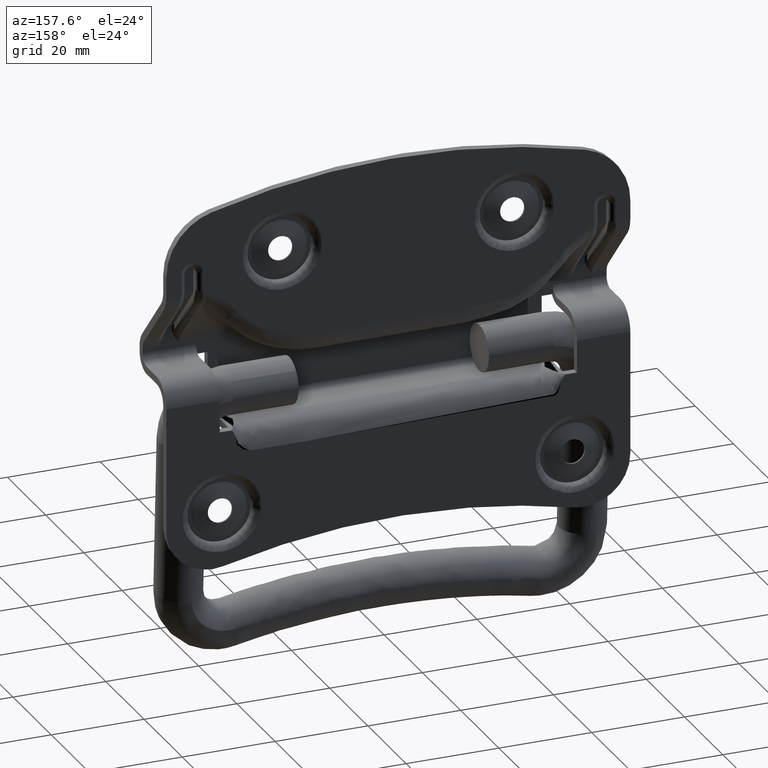
[diagram: clean part render]
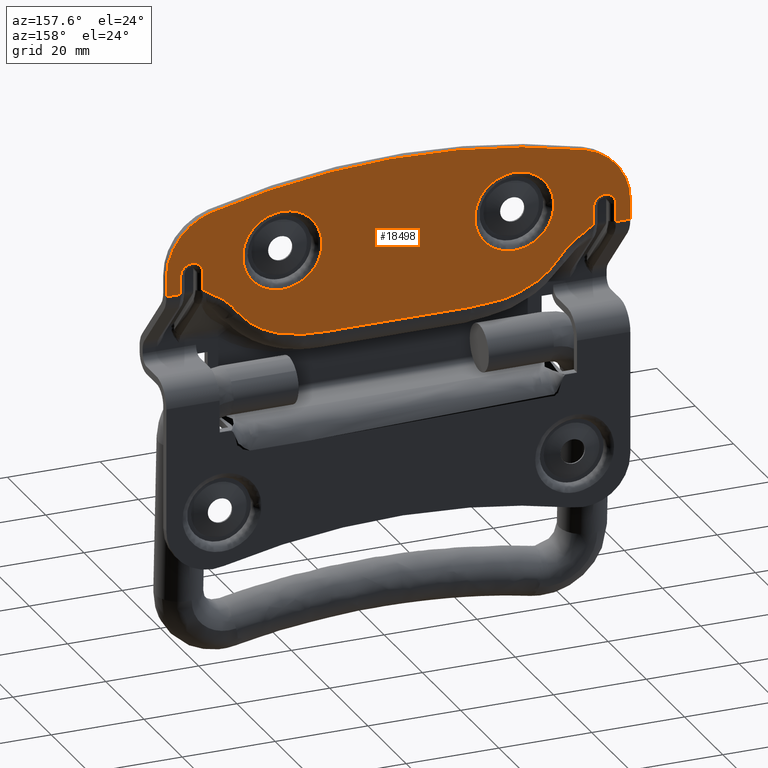
[diagram: same view with one face highlighted and labeled with its STEP entity id]
A machine part, auxiliary view. The second image highlights one B-rep face of the part: STEP entity #18498.
In plain terms, the highlighted face is a freeform B-spline surface patch.
Its self-contained STEP definition (entity closure, byte-faithful):
#5974=CARTESIAN_POINT('',(-16.500672680119081,7.399999999998487,31.893188670373149));
#5975=VERTEX_POINT('',#5974);
#5988=CARTESIAN_POINT('',(-25.0,7.400000000000000,23.500000000000000));
#5989=VERTEX_POINT('',#5988);
#5990=CARTESIAN_POINT('',(-25.0,7.400000000000000,23.500000000000000));
#5991=CARTESIAN_POINT('',(-24.310135702808719,7.399999999999949,23.499809046751999));
#5992=CARTESIAN_POINT('',(-23.206497081053609,7.399999999999805,23.635173560821389));
#5993=CARTESIAN_POINT('',(-21.628879310699531,7.399999999999667,24.151842408902610));
#5994=CARTESIAN_POINT('',(-20.373146734156151,7.399999999999412,24.816734471459291));
#5995=CARTESIAN_POINT('',(-19.200987894605490,7.399999999999280,25.733035229866619));
#5996=CARTESIAN_POINT('',(-18.100174546104871,7.399999999999008,26.931165041810061));
#5997=CARTESIAN_POINT('',(-17.248383608730471,7.399999999999034,28.365136457944299));
#5998=CARTESIAN_POINT('',(-16.655525180623830,7.399999999998537,30.101471210829249));
#5999=CARTESIAN_POINT('',(-16.508768653629328,7.399999999998614,31.237884226158549));
#6000=CARTESIAN_POINT('',(-16.500672680119081,7.399999999998487,31.893188670373149));
#6001=B_SPLINE_CURVE_WITH_KNOTS('',3,(#5990,#5991,#5992,#5993,#5994,#5995,#5996,#5997,#5998,#5999,#6000),.UNSPECIFIED.,.F.,.U.,(4,1,1,1,1,1,1,1,4),(0.000000083468009,2.069537319856718,3.311259529240124,4.966907680426768,6.312127356468104,7.760755789369517,9.830299019251306,11.278994785833520,13.245035416360830),.UNSPECIFIED.);
#6002=EDGE_CURVE('',#5989,#5975,#6001,.T.);
#6004=CARTESIAN_POINT('',(-33.479306674704418,7.399999999998487,32.592732543812893));
#6005=VERTEX_POINT('',#6004);
#6006=CARTESIAN_POINT('',(-33.479306674704418,7.399999999998487,32.592732543812893));
#6007=CARTESIAN_POINT('',(-33.532722009640807,7.399999999998548,31.831980122270480));
#6008=CARTESIAN_POINT('',(-33.442201015629337,7.399999999998682,30.442413115438288));
#6009=CARTESIAN_POINT('',(-32.910023815985468,7.399999999998877,28.771637167857040));
#6010=CARTESIAN_POINT('',(-32.168721482281917,7.399999999999067,27.352414921620309));
#6011=CARTESIAN_POINT('',(-31.190447272957439,7.399999999999232,26.077044178932130));
#6012=CARTESIAN_POINT('',(-29.735752126474630,7.399999999999498,24.855382495261189));
#6013=CARTESIAN_POINT('',(-28.142096247913958,7.399999999999698,24.037407750871399));
#6014=CARTESIAN_POINT('',(-26.525214797145761,7.399999999999856,23.591496982495119));
#6015=CARTESIAN_POINT('',(-25.508411227370839,7.399999999999966,23.499954100537149));
#6016=CARTESIAN_POINT('',(-25.0,7.400000000000000,23.500000000000000));
#6017=B_SPLINE_CURVE_WITH_KNOTS('',3,(#6006,#6007,#6008,#6009,#6010,#6011,#6012,#6013,#6014,#6015,#6016),.UNSPECIFIED.,.F.,.U.,(4,1,1,1,1,1,1,1,4),(0.000000084517712,2.287850290418227,4.139947505196139,5.229426619336120,7.081462687124312,8.933545533380695,10.894597667517679,12.419839382961531,13.945077302466990),.UNSPECIFIED.);
#6018=EDGE_CURVE('',#6005,#5989,#6017,.T.);
#6074=CARTESIAN_POINT('',(-25.0,7.400000000000000,40.500000000000000));
#6075=VERTEX_POINT('',#6074);
#6076=CARTESIAN_POINT('',(-25.0,7.400000000000000,40.500000000000000));
#6077=CARTESIAN_POINT('',(-25.564833556657788,7.399999999999955,40.500071327425758));
#6078=CARTESIAN_POINT('',(-26.694474476412140,7.399999999999821,40.387003352710657));
#6079=CARTESIAN_POINT('',(-28.258029830914591,7.399999999999642,39.905039099523442));
#6080=CARTESIAN_POINT('',(-29.496234400696309,7.399999999999460,39.249828802164082));
#6081=CARTESIAN_POINT('',(-30.542593308276508,7.399999999999301,38.481717149191027));
#6082=CARTESIAN_POINT('',(-31.400871861793981,7.399999999999153,37.642855590544308));
#6083=CARTESIAN_POINT('',(-32.161191611061192,7.399999999998956,36.630975941636692));
#6084=CARTESIAN_POINT('',(-32.707758493346972,7.399999999998780,35.639130866804727));
#6085=CARTESIAN_POINT('',(-33.231571216753572,7.399999999998736,34.307270358891657));
#6086=CARTESIAN_POINT('',(-33.430847651975760,7.399999999998515,33.288799122676977));
#6087=CARTESIAN_POINT('',(-33.479306674704418,7.399999999998487,32.592732543812893));
#6088=B_SPLINE_CURVE_WITH_KNOTS('',3,(#6076,#6077,#6078,#6079,#6080,#6081,#6082,#6083,#6084,#6085,#6086,#6087),.UNSPECIFIED.,.F.,.U.,(4,1,1,1,1,1,1,1,1,4),(0.000000085115511,1.694497439221005,3.389013546118877,4.884167774829431,5.880932025936645,7.276389461687430,8.472509753738898,9.668647711957069,10.665430535541580,12.758626826836201),.UNSPECIFIED.);
#6089=EDGE_CURVE('',#6075,#6005,#6088,.T.);
#6091=CARTESIAN_POINT('',(-16.500672680119081,7.399999999998487,31.893188670373149));
#6092=CARTESIAN_POINT('',(-16.492627194423179,7.399999999998562,32.524010465547583));
#6093=CARTESIAN_POINT('',(-16.614515274191930,7.399999999998651,33.752290426335328));
#6094=CARTESIAN_POINT('',(-17.106194099312180,7.399999999998806,35.260051537690572));
#6095=CARTESIAN_POINT('',(-17.806505558648709,7.399999999999101,36.597846363746463));
#6096=CARTESIAN_POINT('',(-18.651249604197911,7.399999999999055,37.725286033578122));
#6097=CARTESIAN_POINT('',(-19.766144013702839,7.399999999999488,38.747726724136022));
#6098=CARTESIAN_POINT('',(-21.034784058739149,7.399999999999491,39.570252254002881));
#6099=CARTESIAN_POINT('',(-22.757088906712401,7.399999999999855,40.290122143760762));
#6100=CARTESIAN_POINT('',(-24.158798401300992,7.399999999999903,40.500385570447982));
#6101=CARTESIAN_POINT('',(-25.0,7.400000000000000,40.500000000000000));
#6102=B_SPLINE_CURVE_WITH_KNOTS('',3,(#6091,#6092,#6093,#6094,#6095,#6096,#6097,#6098,#6099,#6100,#6101),.UNSPECIFIED.,.F.,.U.,(4,1,1,1,1,1,1,1,4),(0.000000090075794,1.892605826295526,3.680109179350946,4.731582846543484,6.413939332130744,7.885930162124980,9.252821661053837,10.935180004335900,13.458667749444420),.UNSPECIFIED.);
#6103=EDGE_CURVE('',#5975,#6075,#6102,.T.);
#6436=CARTESIAN_POINT('',(28.424654702686279,7.399999999999999,24.220450035639779));
#6437=VERTEX_POINT('',#6436);
#6450=CARTESIAN_POINT('',(24.999949999999998,7.400000000000000,23.500000000000000));
#6451=VERTEX_POINT('',#6450);
#6452=CARTESIAN_POINT('',(24.999949999999998,7.400000000000000,23.500000000000000));
#6453=CARTESIAN_POINT('',(25.477275922084822,7.399999999999997,23.499977707607680));
#6454=CARTESIAN_POINT('',(26.652235915918190,7.400000000000010,23.599193398048399));
#6455=CARTESIAN_POINT('',(27.786212651280220,7.400000000000002,23.939193050441830));
#6456=CARTESIAN_POINT('',(28.424654702686279,7.399999999999999,24.220450035639779));
#6457=B_SPLINE_CURVE_WITH_KNOTS('',3,(#6452,#6453,#6454,#6455,#6456),.UNSPECIFIED.,.F.,.U.,(4,1,4),(6.209891E-009,1.431994427426866,3.524891620544222),.UNSPECIFIED.);
#6458=EDGE_CURVE('',#6451,#6437,#6457,.T.);
#6460=CARTESIAN_POINT('',(16.499950000000119,7.400000000000000,31.999998566106530));
#6461=VERTEX_POINT('',#6460);
#6462=CARTESIAN_POINT('',(16.499950000000119,7.400000000000000,31.999998566106530));
#6463=CARTESIAN_POINT('',(16.499769352913550,7.400000000000015,31.304579976446242));
#6464=CARTESIAN_POINT('',(16.641590530651271,7.399999999999976,30.157255860912208));
#6465=CARTESIAN_POINT('',(17.198809800978829,7.400000000000001,28.504589845311671));
#6466=CARTESIAN_POINT('',(17.965805358249028,7.400000000000008,27.131059878994598));
#6467=CARTESIAN_POINT('',(19.143287718375600,7.400000000000002,25.748845895116730));
#6468=CARTESIAN_POINT('',(20.509384577151579,7.400000000000015,24.709425306722789));
#6469=CARTESIAN_POINT('',(21.897613235610510,7.399999999999954,24.053041927755530));
#6470=CARTESIAN_POINT('',(23.331049828078928,7.400000000000043,23.618187117752591));
#6471=CARTESIAN_POINT('',(24.339304003209989,7.399999999999979,23.499843763140721));
#6472=CARTESIAN_POINT('',(24.999949999999998,7.400000000000000,23.500000000000000));
#6473=B_SPLINE_CURVE_WITH_KNOTS('',3,(#6462,#6463,#6464,#6465,#6466,#6467,#6468,#6469,#6470,#6471,#6472),.UNSPECIFIED.,.F.,.U.,(4,1,1,1,1,1,1,1,4),(0.000000086972364,2.086216169869100,3.442275759339728,5.215593952150782,6.780212189449361,8.866454911805869,10.326827459856410,11.369956029964200,13.351851746269601),.UNSPECIFIED.);
#6474=EDGE_CURVE('',#6461,#6451,#6473,.T.);
#6476=CARTESIAN_POINT('',(24.999949999999998,7.400000000000000,40.500000000000000));
#6477=VERTEX_POINT('',#6476);
#6478=CARTESIAN_POINT('',(24.999949999999998,7.400000000000000,40.500000000000000));
#6479=CARTESIAN_POINT('',(24.304527301342581,7.400000000000000,40.500185977935303));
#6480=CARTESIAN_POINT('',(23.226751388264081,7.399999999999992,40.366941726110269));
#6481=CARTESIAN_POINT('',(21.635180267678010,7.399999999999990,39.851980305121323));
#6482=CARTESIAN_POINT('',(20.428836528382490,7.400000000000022,39.216669424153842));
#6483=CARTESIAN_POINT('',(19.103741961800090,7.399999999999967,38.195651906659393));
#6484=CARTESIAN_POINT('',(18.129138406543309,7.400000000000025,37.093445208408589));
#6485=CARTESIAN_POINT('',(17.242490776574609,7.399999999999996,35.593347854025730));
#6486=CARTESIAN_POINT('',(16.654720337140130,7.400000000000007,33.981864150821558));
#6487=CARTESIAN_POINT('',(16.499818670569191,7.399999999999999,32.660634795330452));
#6488=CARTESIAN_POINT('',(16.499950000000119,7.400000000000000,31.999998566106530));
#6489=B_SPLINE_CURVE_WITH_KNOTS('',3,(#6478,#6479,#6480,#6481,#6482,#6483,#6484,#6485,#6486,#6487,#6488),.UNSPECIFIED.,.F.,.U.,(4,1,1,1,1,1,1,1,4),(0.000000086480442,2.086216422127080,3.233652065280550,5.006959799025703,6.154391394567762,8.240574891652621,9.388016486622533,11.369957406490130,13.351853362611910),.UNSPECIFIED.);
#6490=EDGE_CURVE('',#6477,#6461,#6489,.T.);
#6492=CARTESIAN_POINT('',(32.779499964360220,7.400000000000000,35.424704702686277));
#6493=VERTEX_POINT('',#6492);
#6494=CARTESIAN_POINT('',(32.779499964360220,7.400000000000000,35.424704702686277));
#6495=CARTESIAN_POINT('',(32.583630116704832,7.400000000000004,35.869731151182769));
#6496=CARTESIAN_POINT('',(32.115208537783019,7.399999999999973,36.726014761874637));
#6497=CARTESIAN_POINT('',(31.059853969586989,7.400000000000112,38.052698354170758));
#6498=CARTESIAN_POINT('',(29.643156597195230,7.399999999999766,39.213488778485612));
#6499=CARTESIAN_POINT('',(28.114470678166288,7.400000000000174,39.954798805120568));
#6500=CARTESIAN_POINT('',(26.586540648105910,7.399999999999873,40.394115664212578));
#6501=CARTESIAN_POINT('',(25.614138698338969,7.400000000000223,40.500102304854742));
#6502=CARTESIAN_POINT('',(24.999949999999998,7.400000000000000,40.500000000000000));
#6503=B_SPLINE_CURVE_WITH_KNOTS('',3,(#6494,#6495,#6496,#6497,#6498,#6499,#6500,#6501,#6502),.UNSPECIFIED.,.F.,.U.,(4,1,1,1,1,1,4),(0.000000057938980,1.458673030823324,2.917378152865003,5.066992523291421,6.909557125609974,7.984391995261582,9.826935220535200),.UNSPECIFIED.);
#6504=EDGE_CURVE('',#6493,#6477,#6503,.T.);
#6558=CARTESIAN_POINT('',(28.424654702686279,7.399999999999999,24.220450035639779));
#6559=CARTESIAN_POINT('',(28.933859067253401,7.400000000000023,24.444529417186480));
#6560=CARTESIAN_POINT('',(29.877523373337219,7.399999999999950,24.976077276652930));
#6561=CARTESIAN_POINT('',(31.209481988893131,7.400000000000042,26.104840716967690));
#6562=CARTESIAN_POINT('',(32.174215607217917,7.399999999999964,27.350195636846340));
#6563=CARTESIAN_POINT('',(32.875403301404603,7.400000000000047,28.713888637547601));
#6564=CARTESIAN_POINT('',(33.294633883317118,7.400000000000001,29.972008466951259));
#6565=CARTESIAN_POINT('',(33.527596505907603,7.399999999999992,31.453683556172791));
#6566=CARTESIAN_POINT('',(33.486987884852759,7.399999999999992,33.304973773661473));
#6567=CARTESIAN_POINT('',(33.116076575830093,7.399999999999992,34.661064175256982));
#6568=CARTESIAN_POINT('',(32.779499964360220,7.400000000000000,35.424704702686277));
#6569=B_SPLINE_CURVE_WITH_KNOTS('',3,(#6558,#6559,#6560,#6561,#6562,#6563,#6564,#6565,#6566,#6567,#6568),.UNSPECIFIED.,.F.,.U.,(4,1,1,1,1,1,1,1,4),(0.000000086743693,1.668976611766032,3.233651867886882,5.215594264596621,6.363034015799459,7.823343541396307,9.179386501834294,10.848392358955550,13.351852546756771),.UNSPECIFIED.);
#6570=EDGE_CURVE('',#6437,#6493,#6569,.T.);
#9846=CARTESIAN_POINT('',(46.899999999999999,7.400000000000000,26.078409323843850));
#9847=VERTEX_POINT('',#9846);
#9898=CARTESIAN_POINT('',(46.899999999999999,7.400000000000000,30.0));
#9899=VERTEX_POINT('',#9898);
#9911=CARTESIAN_POINT('',(46.899999999999999,7.400000000000000,26.078409323843850));
#9912=CARTESIAN_POINT('',(46.899999999999999,7.400000000000000,30.0));
#9913=QUASI_UNIFORM_CURVE('',1,(#9911,#9912),.UNSPECIFIED.,.F.,.U.);
#9914=EDGE_CURVE('',#9847,#9899,#9913,.T.);
#10035=CARTESIAN_POINT('',(42.100000000000001,7.400000000000000,30.0));
#10036=VERTEX_POINT('',#10035);
#10048=CARTESIAN_POINT('',(44.500002722271553,7.400000000000000,32.399999999998457));
#10049=VERTEX_POINT('',#10048);
#10050=CARTESIAN_POINT('',(42.100000000000001,7.400000000000000,30.0));
#10051=CARTESIAN_POINT('',(42.099763228065399,7.400000000000008,30.294571135849221));
#10052=CARTESIAN_POINT('',(42.184224977509778,7.399999999999994,30.745946045189559));
#10053=CARTESIAN_POINT('',(42.494713872721903,7.400000000000009,31.362804682726210));
#10054=CARTESIAN_POINT('',(42.857685606478867,7.400000000000002,31.783619905875639));
#10055=CARTESIAN_POINT('',(43.277158428590823,7.400000000000002,32.078919758747837));
#10056=CARTESIAN_POINT('',(43.793291181191989,7.400000000000002,32.323116064135000));
#10057=CARTESIAN_POINT('',(44.205427313680680,7.400000000000000,32.400279320751629));
#10058=CARTESIAN_POINT('',(44.500002722271553,7.400000000000000,32.399999999998457));
#10059=B_SPLINE_CURVE_WITH_KNOTS('',3,(#10050,#10051,#10052,#10053,#10054,#10055,#10056,#10057,#10058),.UNSPECIFIED.,.F.,.U.,(4,1,1,1,1,1,4),(0.000000129317155,0.883595603902486,1.354847947257719,2.061689792688835,2.532960198691443,2.886412943142785,3.770007320763089),.UNSPECIFIED.);
#10060=EDGE_CURVE('',#10036,#10049,#10059,.T.);
#10062=CARTESIAN_POINT('',(44.500002722271553,7.400000000000000,32.399999999998457));
#10063=CARTESIAN_POINT('',(44.696349177886013,7.400000000000008,32.400040196144992));
#10064=CARTESIAN_POINT('',(45.108678984933661,7.399999999999987,32.349144525771280));
#10065=CARTESIAN_POINT('',(45.642220445521218,7.399999999999984,32.135803855156922));
#10066=CARTESIAN_POINT('',(46.109986023398783,7.400000000000034,31.806288485869349));
#10067=CARTESIAN_POINT('',(46.535284142181112,7.400000000000029,31.337309379180638));
#10068=CARTESIAN_POINT('',(46.833439593027499,7.400000000000023,30.706895435859611));
#10069=CARTESIAN_POINT('',(46.900031158892922,7.399999999999985,30.215970443934101));
#10070=CARTESIAN_POINT('',(46.899999999999999,7.400000000000000,30.0));
#10071=B_SPLINE_CURVE_WITH_KNOTS('',3,(#10062,#10063,#10064,#10065,#10066,#10067,#10068,#10069,#10070),.UNSPECIFIED.,.F.,.U.,(4,1,1,1,1,1,4),(0.000000133050921,0.589048231576099,1.237044967709669,1.708315066893263,2.297330072070356,3.122048309590518,3.770004252052011),.UNSPECIFIED.);
#10072=EDGE_CURVE('',#10049,#9899,#10071,.T.);
#10094=CARTESIAN_POINT('',(42.100000000000001,7.400000000000000,26.078409323843850));
#10095=VERTEX_POINT('',#10094);
#10107=CARTESIAN_POINT('',(42.100000000000001,7.400000000000000,30.0));
#10108=CARTESIAN_POINT('',(42.100000000000001,7.400000000000000,26.078409323843850));
#10109=QUASI_UNIFORM_CURVE('',1,(#10107,#10108),.UNSPECIFIED.,.F.,.U.);
#10110=EDGE_CURVE('',#10036,#10095,#10109,.T.);
#10352=CARTESIAN_POINT('',(-46.899999999999999,7.400000000000000,26.078409323843850));
#10353=VERTEX_POINT('',#10352);
#10404=CARTESIAN_POINT('',(-46.899999999999999,7.400000000000000,30.0));
#10405=VERTEX_POINT('',#10404);
#10424=CARTESIAN_POINT('',(-46.899999999999999,7.400000000000000,30.0));
#10425=CARTESIAN_POINT('',(-46.899999999999999,7.400000000000000,26.078409323843850));
#10426=QUASI_UNIFORM_CURVE('',1,(#10424,#10425),.UNSPECIFIED.,.F.,.U.);
#10427=EDGE_CURVE('',#10405,#10353,#10426,.T.);
#10455=CARTESIAN_POINT('',(-42.100000000000001,7.400000000000000,30.0));
#10456=VERTEX_POINT('',#10455);
#10495=CARTESIAN_POINT('',(-44.499997277728440,7.400000000000000,32.399999999998457));
#10496=VERTEX_POINT('',#10495);
#10497=CARTESIAN_POINT('',(-46.899999999999999,7.400000000000000,30.0));
#10498=CARTESIAN_POINT('',(-46.900470946156013,7.400000000000000,30.333898405662332));
#10499=CARTESIAN_POINT('',(-46.795812404342570,7.399999999999996,30.824337553772029));
#10500=CARTESIAN_POINT('',(-46.416607362730332,7.400000000000009,31.493942751304498));
#10501=CARTESIAN_POINT('',(-45.937598116944187,7.399999999999990,31.973037041034331));
#10502=CARTESIAN_POINT('',(-45.246043723638337,7.400000000000029,32.320911091302619));
#10503=CARTESIAN_POINT('',(-44.755267203341162,7.399999999999981,32.400151639068710));
#10504=CARTESIAN_POINT('',(-44.499997277728440,7.400000000000000,32.399999999998457));
#10505=B_SPLINE_CURVE_WITH_KNOTS('',3,(#10497,#10498,#10499,#10500,#10501,#10502,#10503,#10504),.UNSPECIFIED.,.F.,.U.,(4,1,1,1,1,4),(0.000000129323575,1.001410266918774,1.472677762571045,2.297331945282535,3.004233146521471,3.770007320763094),.UNSPECIFIED.);
#10506=EDGE_CURVE('',#10405,#10496,#10505,.T.);
#10508=CARTESIAN_POINT('',(-44.499997277728440,7.400000000000000,32.399999999998457));
#10509=CARTESIAN_POINT('',(-44.205433856680237,7.399999999999997,32.400226764877438));
#10510=CARTESIAN_POINT('',(-43.754024482311799,7.400000000000008,32.315817966428533));
#10511=CARTESIAN_POINT('',(-43.207721257614168,7.399999999999992,32.040699418454082));
#10512=CARTESIAN_POINT('',(-42.834432491662753,7.400000000000014,31.749401182533891));
#10513=CARTESIAN_POINT('',(-42.525163560125947,7.400000000000000,31.390844904075170));
#10514=CARTESIAN_POINT('',(-42.204105317163702,7.400000000000009,30.824384502661701));
#10515=CARTESIAN_POINT('',(-42.099566013520970,7.400000000000001,30.333881700981280));
#10516=CARTESIAN_POINT('',(-42.100000000000001,7.400000000000000,30.0));
#10517=B_SPLINE_CURVE_WITH_KNOTS('',3,(#10508,#10509,#10510,#10511,#10512,#10513,#10514,#10515,#10516),.UNSPECIFIED.,.F.,.U.,(4,1,1,1,1,1,4),(0.000000133054364,0.883594887441403,1.354846848688891,1.826111088084986,2.297330072071336,2.768595852970264,3.770004252052007),.UNSPECIFIED.);
#10518=EDGE_CURVE('',#10496,#10456,#10517,.T.);
#10598=CARTESIAN_POINT('',(-42.100000000000001,7.400000000000000,26.078409323843850));
#10599=VERTEX_POINT('',#10598);
#10619=CARTESIAN_POINT('',(-42.100000000000001,7.400000000000000,26.078409323843850));
#10620=CARTESIAN_POINT('',(-42.100000000000001,7.400000000000000,30.0));
#10621=QUASI_UNIFORM_CURVE('',1,(#10619,#10620),.UNSPECIFIED.,.F.,.U.);
#10622=EDGE_CURVE('',#10599,#10456,#10621,.T.);
#12803=CARTESIAN_POINT('',(34.565293890301398,7.400000000000000,20.053067889151301));
#12804=VERTEX_POINT('',#12803);
#12846=CARTESIAN_POINT('',(15.675500036184349,7.400000000000000,12.699999999999999));
#12847=VERTEX_POINT('',#12846);
#12861=CARTESIAN_POINT('',(34.565293890301398,7.400000000000000,20.053067889151301));
#12862=CARTESIAN_POINT('',(32.972425349504952,7.400000000000000,17.926475455061901));
#12863=CARTESIAN_POINT('',(30.595509070834972,7.400000000000000,16.346707633149109));
#12864=CARTESIAN_POINT('',(28.410273607689000,7.400000000000000,14.894336466793749));
#12865=CARTESIAN_POINT('',(25.767144354569950,7.400000000000000,14.034157221896100));
#12866=CARTESIAN_POINT('',(23.442350509983001,7.400000000000000,13.277576963318200));
#12867=CARTESIAN_POINT('',(20.698319672026962,7.400000000000000,12.957831196693400));
#12868=CARTESIAN_POINT('',(18.485947152002922,7.400000000000000,12.700036445377251));
#12869=CARTESIAN_POINT('',(15.675500036184349,7.400000000000000,12.699999999999999));
#12870=B_SPLINE_CURVE_WITH_KNOTS('',2,(#12861,#12862,#12863,#12864,#12865,#12866,#12867,#12868,#12869),.UNSPECIFIED.,.F.,.U.,(3,2,2,2,3),(0.0,0.250000000000000,0.500000000000000,0.750000000000000,1.0),.UNSPECIFIED.);
#12871=EDGE_CURVE('',#12804,#12847,#12870,.T.);
#12892=CARTESIAN_POINT('',(-15.675500036184349,7.400000000000000,12.699999999999999));
#12893=VERTEX_POINT('',#12892);
#12907=CARTESIAN_POINT('',(15.675500036184349,7.400000000000000,12.699999999999999));
#12908=CARTESIAN_POINT('',(-15.675500036184349,7.400000000000000,12.699999999999999));
#12909=QUASI_UNIFORM_CURVE('',1,(#12907,#12908),.UNSPECIFIED.,.F.,.U.);
#12910=EDGE_CURVE('',#12847,#12893,#12909,.T.);
#12979=CARTESIAN_POINT('',(37.850145583341302,7.400000000000000,23.474496795880398));
#12980=VERTEX_POINT('',#12979);
#13007=CARTESIAN_POINT('',(37.850145583341302,7.400000000000000,23.474496795880398));
#13008=CARTESIAN_POINT('',(37.533382243804610,7.400000000000000,23.230685911210269));
#13009=CARTESIAN_POINT('',(37.230369515996337,7.400000000000002,22.973673314200688));
#13010=CARTESIAN_POINT('',(36.646259410055372,7.399999999999998,22.438607591370939));
#13011=CARTESIAN_POINT('',(36.365200665681847,7.400000000000001,22.160517373980941));
#13012=CARTESIAN_POINT('',(35.821575858503699,7.400000000000001,21.586582451816799));
#13013=CARTESIAN_POINT('',(35.559027042393552,7.400000000000001,21.290721188804781));
#13014=CARTESIAN_POINT('',(35.050239454015149,7.400000000000001,20.683339686198732));
#13015=CARTESIAN_POINT('',(34.804007905246912,7.400000000000001,20.371812511453630));
#13016=CARTESIAN_POINT('',(34.565293890301398,7.400000000000000,20.053067889151301));
#13017=B_SPLINE_CURVE_WITH_KNOTS('',3,(#13007,#13008,#13009,#13010,#13011,#13012,#13013,#13014,#13015,#13016),.UNSPECIFIED.,.F.,.U.,(4,2,2,2,4),(0.0,0.250000000000000,0.500000000000000,0.750000000000000,1.0),.UNSPECIFIED.);
#13018=EDGE_CURVE('',#12980,#12804,#13017,.T.);
#13322=CARTESIAN_POINT('',(-34.565293890301398,7.400000000000000,20.053067889151350));
#13323=VERTEX_POINT('',#13322);
#13336=CARTESIAN_POINT('',(-15.675500036184349,7.400000000000000,12.699999999999999));
#13337=CARTESIAN_POINT('',(-18.484877101939020,7.400000000000000,12.700036431489810));
#13338=CARTESIAN_POINT('',(-20.698319672025960,7.400000000000000,12.957831196698750));
#13339=CARTESIAN_POINT('',(-23.440558398599052,7.400000000000000,13.277213681800051));
#13340=CARTESIAN_POINT('',(-25.767144354569059,7.400000000000000,14.034157221896100));
#13341=CARTESIAN_POINT('',(-28.408550473752019,7.400000000000000,14.893525986482210));
#13342=CARTESIAN_POINT('',(-30.595509071059009,7.400000000000000,16.346707632978958));
#13343=CARTESIAN_POINT('',(-32.971882783674907,7.400000000000000,17.925751090246909));
#13344=CARTESIAN_POINT('',(-34.565293890301398,7.400000000000000,20.053067889151350));
#13345=B_SPLINE_CURVE_WITH_KNOTS('',2,(#13336,#13337,#13338,#13339,#13340,#13341,#13342,#13343,#13344),.UNSPECIFIED.,.F.,.U.,(3,2,2,2,3),(0.0,0.250000000000000,0.500000000000000,0.750000000000000,1.0),.UNSPECIFIED.);
#13346=EDGE_CURVE('',#12893,#13323,#13345,.T.);
#13423=CARTESIAN_POINT('',(38.732005027275463,7.400000000000000,24.086665719857599));
#13424=VERTEX_POINT('',#13423);
#13445=CARTESIAN_POINT('',(38.732005027275463,7.400000000000000,24.086665719857599));
#13446=CARTESIAN_POINT('',(38.428090535945557,7.399999999999998,23.897487931387019));
#13447=CARTESIAN_POINT('',(38.133643112136092,7.400000000000002,23.693088415269241));
#13448=CARTESIAN_POINT('',(37.850145583341302,7.400000000000000,23.474496795880398));
#13449=B_SPLINE_CURVE_WITH_KNOTS('',3,(#13445,#13446,#13447,#13448),.UNSPECIFIED.,.F.,.U.,(4,4),(4.102684E-010,1.073966240673569),.UNSPECIFIED.);
#13450=EDGE_CURVE('',#13424,#12980,#13449,.T.);
#13515=CARTESIAN_POINT('',(-37.850145583341302,7.400000000000000,23.474496795880452));
#13516=VERTEX_POINT('',#13515);
#13528=CARTESIAN_POINT('',(-34.565293890301447,7.400000000000000,20.053067889151301));
#13529=CARTESIAN_POINT('',(-34.804007905246948,7.400000000000000,20.371812511453630));
#13530=CARTESIAN_POINT('',(-35.050239454015177,7.400000000000002,20.683339686198732));
#13531=CARTESIAN_POINT('',(-35.559027042393588,7.399999999999998,21.290721188804788));
#13532=CARTESIAN_POINT('',(-35.821575858503721,7.400000000000001,21.586582451816799));
#13533=CARTESIAN_POINT('',(-36.365200665681890,7.400000000000001,22.160517373980959));
#13534=CARTESIAN_POINT('',(-36.646259410055393,7.400000000000001,22.438607591370960));
#13535=CARTESIAN_POINT('',(-37.230369515996337,7.400000000000001,22.973673314200710));
#13536=CARTESIAN_POINT('',(-37.533382243804610,7.400000000000001,23.230685911210308));
#13537=CARTESIAN_POINT('',(-37.850145583341302,7.400000000000000,23.474496795880452));
#13538=B_SPLINE_CURVE_WITH_KNOTS('',3,(#13528,#13529,#13530,#13531,#13532,#13533,#13534,#13535,#13536,#13537),.UNSPECIFIED.,.F.,.U.,(4,2,2,2,4),(0.0,0.250000000000000,0.500000000000000,0.750000000000000,1.0),.UNSPECIFIED.);
#13539=EDGE_CURVE('',#13323,#13516,#13538,.T.);
#13606=CARTESIAN_POINT('',(39.803875738327349,7.400000000000000,24.696294137701649));
#13607=VERTEX_POINT('',#13606);
#13631=CARTESIAN_POINT('',(39.803875738327349,7.400000000000000,24.696294137701649));
#13632=CARTESIAN_POINT('',(39.619431979164027,7.400000000000000,24.604884780907032));
#13633=CARTESIAN_POINT('',(39.438948071726443,7.400000000000002,24.506513069732769));
#13634=CARTESIAN_POINT('',(39.082616265908818,7.400000000000000,24.301618448753260));
#13635=CARTESIAN_POINT('',(38.906770684450230,7.400000000000001,24.195091465252901));
#13636=CARTESIAN_POINT('',(38.732005027275463,7.400000000000000,24.086665719857550));
#13637=B_SPLINE_CURVE_WITH_KNOTS('',3,(#13631,#13632,#13633,#13634,#13635,#13636),.UNSPECIFIED.,.F.,.U.,(4,2,4),(0.0,0.500000000000000,1.0),.UNSPECIFIED.);
#13638=EDGE_CURVE('',#13607,#13424,#13637,.T.);
#13693=CARTESIAN_POINT('',(-38.732005027275200,7.400000000000000,24.086665719857400));
#13694=VERTEX_POINT('',#13693);
#13705=CARTESIAN_POINT('',(-37.850145583341302,7.400000000000000,23.474496795880452));
#13706=CARTESIAN_POINT('',(-38.133613829487253,7.400000000000011,23.693124507074931));
#13707=CARTESIAN_POINT('',(-38.428066791249222,7.399999999999995,23.897523423022321));
#13708=CARTESIAN_POINT('',(-38.732005027275200,7.400000000000000,24.086665719857400));
#13709=B_SPLINE_CURVE_WITH_KNOTS('',3,(#13705,#13706,#13707,#13708),.UNSPECIFIED.,.F.,.U.,(4,4),(4.144176E-010,1.073968495901766),.UNSPECIFIED.);
#13710=EDGE_CURVE('',#13516,#13694,#13709,.T.);
#13965=CARTESIAN_POINT('',(41.767814805103050,7.400000000000000,26.078409323843701));
#13966=VERTEX_POINT('',#13965);
#13967=CARTESIAN_POINT('',(41.767814805103050,7.400000000000000,26.078409323843701));
#13968=CARTESIAN_POINT('',(41.609811020158702,7.400000000000003,25.955525715554259));
#13969=CARTESIAN_POINT('',(41.451887184068461,7.400000000000003,25.832351180656719));
#13970=CARTESIAN_POINT('',(41.133919113313780,7.400000000000001,25.588022398534662));
#13971=CARTESIAN_POINT('',(40.974153862507428,7.400000000000000,25.466861519944100));
#13972=CARTESIAN_POINT('',(40.650915306021993,7.400000000000000,25.229520441491939));
#13973=CARTESIAN_POINT('',(40.487694438820682,7.400000000000000,25.113322678623419));
#13974=CARTESIAN_POINT('',(40.237458229006243,7.400000000000001,24.947370954001421));
#13975=CARTESIAN_POINT('',(40.153134439245413,7.400000000000000,24.893461364037140));
#13976=CARTESIAN_POINT('',(39.981445162533262,7.400000000000001,24.790338418344760));
#13977=CARTESIAN_POINT('',(39.894141614895169,7.400000000000004,24.741029431294649));
#13978=CARTESIAN_POINT('',(39.803875738327349,7.400000000000000,24.696294137701649));
#13979=B_SPLINE_CURVE_WITH_KNOTS('',3,(#13967,#13968,#13969,#13970,#13971,#13972,#13973,#13974,#13975,#13976,#13977,#13978),.UNSPECIFIED.,.F.,.U.,(4,2,2,2,2,4),(0.0,0.249999999999998,0.499999999999996,0.749999999999995,0.874999999999997,1.0),.UNSPECIFIED.);
#13980=EDGE_CURVE('',#13966,#13607,#13979,.T.);
#14062=CARTESIAN_POINT('',(-39.803875738327548,7.400000000000000,24.696294137701699));
#14063=VERTEX_POINT('',#14062);
#14073=CARTESIAN_POINT('',(-38.732005027275200,7.400000000000000,24.086665719857400));
#14074=CARTESIAN_POINT('',(-38.906770684450073,7.400000000000000,24.195091465252791));
#14075=CARTESIAN_POINT('',(-39.082616265908719,7.400000000000002,24.301618448753171));
#14076=CARTESIAN_POINT('',(-39.438948071726479,7.400000000000000,24.506513069732769));
#14077=CARTESIAN_POINT('',(-39.619431979164162,7.400000000000001,24.604884780907032));
#14078=CARTESIAN_POINT('',(-39.803875738327548,7.400000000000000,24.696294137701699));
#14079=B_SPLINE_CURVE_WITH_KNOTS('',3,(#14073,#14074,#14075,#14076,#14077,#14078),.UNSPECIFIED.,.F.,.U.,(4,2,4),(0.0,0.500000000000000,1.0),.UNSPECIFIED.);
#14080=EDGE_CURVE('',#13694,#14063,#14079,.T.);
#14141=CARTESIAN_POINT('',(-41.767814805103200,7.400000000000000,26.078409323843900));
#14142=VERTEX_POINT('',#14141);
#14169=CARTESIAN_POINT('',(-39.803875738327548,7.400000000000000,24.696294137701699));
#14170=CARTESIAN_POINT('',(-39.894069797217163,7.400000000000000,24.740993838831180));
#14171=CARTESIAN_POINT('',(-39.981342820907791,7.400000000000002,24.790279973789829));
#14172=CARTESIAN_POINT('',(-40.153004872763361,7.400000000000000,24.893380520068380));
#14173=CARTESIAN_POINT('',(-40.237333361787002,7.400000000000000,24.947289986307819));
#14174=CARTESIAN_POINT('',(-40.487613861822531,7.400000000000000,25.113265561616860));
#14175=CARTESIAN_POINT('',(-40.650967595598203,7.400000000000001,25.229558127098120));
#14176=CARTESIAN_POINT('',(-40.974188421887362,7.400000000000001,25.466887604225700));
#14177=CARTESIAN_POINT('',(-41.133927980254960,7.400000000000001,25.588029225283091));
#14178=CARTESIAN_POINT('',(-41.451874547384669,7.400000000000001,25.832341457213190));
#14179=CARTESIAN_POINT('',(-41.609802333371888,7.399999999999999,25.955518960948790));
#14180=CARTESIAN_POINT('',(-41.767814805103093,7.400000000000000,26.078409323843850));
#14181=B_SPLINE_CURVE_WITH_KNOTS('',3,(#14169,#14170,#14171,#14172,#14173,#14174,#14175,#14176,#14177,#14178,#14179,#14180),.UNSPECIFIED.,.F.,.U.,(4,2,2,2,2,4),(0.0,0.125000000000000,0.250000000000000,0.500000000000000,0.750000000000000,1.0),.UNSPECIFIED.);
#14182=EDGE_CURVE('',#14063,#14142,#14181,.T.);
#15454=CARTESIAN_POINT('',(50.0,7.400000000000000,26.078409323843850));
#15455=VERTEX_POINT('',#15454);
#15456=CARTESIAN_POINT('',(50.0,7.400000000000000,26.078409323843850));
#15457=CARTESIAN_POINT('',(46.899999999999999,7.400000000000000,26.078409323843850));
#15458=QUASI_UNIFORM_CURVE('',1,(#15456,#15457),.UNSPECIFIED.,.F.,.U.);
#15459=EDGE_CURVE('',#15455,#9847,#15458,.T.);
#15487=CARTESIAN_POINT('',(42.100000000000001,7.400000000000000,26.078409323843850));
#15488=CARTESIAN_POINT('',(41.767814805103050,7.400000000000000,26.078409323843701));
#15489=QUASI_UNIFORM_CURVE('',1,(#15487,#15488),.UNSPECIFIED.,.F.,.U.);
#15490=EDGE_CURVE('',#10095,#13966,#15489,.T.);
#15522=CARTESIAN_POINT('',(-41.767814805103200,7.400000000000000,26.078409323843900));
#15523=CARTESIAN_POINT('',(-42.100000000000001,7.400000000000000,26.078409323843850));
#15524=QUASI_UNIFORM_CURVE('',1,(#15522,#15523),.UNSPECIFIED.,.F.,.U.);
#15525=EDGE_CURVE('',#14142,#10599,#15524,.T.);
#15545=CARTESIAN_POINT('',(-50.000000037498403,7.400000000000000,26.078409323843850));
#15546=VERTEX_POINT('',#15545);
#15547=CARTESIAN_POINT('',(-46.899999999999999,7.400000000000000,26.078409323843850));
#15548=CARTESIAN_POINT('',(-50.000000037498403,7.400000000000000,26.078409323843850));
#15549=QUASI_UNIFORM_CURVE('',1,(#15547,#15548),.UNSPECIFIED.,.F.,.U.);
#15550=EDGE_CURVE('',#10353,#15546,#15549,.T.);
#16934=CARTESIAN_POINT('',(40.272108843537453,7.400000000000000,42.848820626100547));
#16935=VERTEX_POINT('',#16934);
#16941=CARTESIAN_POINT('',(-40.272108843537403,7.400000000000000,42.848820626100597));
#16942=VERTEX_POINT('',#16941);
#16943=CARTESIAN_POINT('',(40.272108843537460,7.400000000000000,42.848820626100583));
#16944=CARTESIAN_POINT('',(2.775558E-014,7.400000000000000,53.322537791966788));
#16945=CARTESIAN_POINT('',(-40.272108843537382,7.400000000000000,42.848820626100611));
#16953=(BOUNDED_CURVE()B_SPLINE_CURVE(2,(#16943,#16944,#16945),.UNSPECIFIED.,.F.,.U.)CURVE()GEOMETRIC_REPRESENTATION_ITEM()QUASI_UNIFORM_CURVE()RATIONAL_B_SPLINE_CURVE((1.0,0.967805128913129,1.0))REPRESENTATION_ITEM(''));
#16954=EDGE_CURVE('',#16935,#16942,#16953,.T.);
#16995=CARTESIAN_POINT('',(-50.0,7.400000000000000,30.267353950229900));
#16996=VERTEX_POINT('',#16995);
#16997=CARTESIAN_POINT('',(-40.272108843537403,7.400000000000000,42.848820626100597));
#16998=CARTESIAN_POINT('',(-41.134743991353730,7.400000000000000,42.624613333005492));
#16999=CARTESIAN_POINT('',(-42.393777580460203,7.400000000000004,42.154373193615392));
#17000=CARTESIAN_POINT('',(-44.144780030435712,7.400000000000005,41.171373778306872));
#17001=CARTESIAN_POINT('',(-45.758055945216199,7.399999999999998,39.970155326065353));
#17002=CARTESIAN_POINT('',(-47.408412632742269,7.400000000000011,38.201259092539537));
#17003=CARTESIAN_POINT('',(-48.789748132054569,7.399999999999968,35.949280154125773));
#17004=CARTESIAN_POINT('',(-49.756589230670343,7.400000000000017,33.297596734598287));
#17005=CARTESIAN_POINT('',(-50.000286945833288,7.399999999999994,31.336923315786940));
#17006=CARTESIAN_POINT('',(-50.0,7.400000000000000,30.267353950229900));
#17007=B_SPLINE_CURVE_WITH_KNOTS('',3,(#16997,#16998,#16999,#17000,#17001,#17002,#17003,#17004,#17005,#17006),.UNSPECIFIED.,.F.,.U.,(4,1,1,1,1,1,1,4),(0.000000045537025,2.673854333480495,4.010799033775307,6.016210805432749,8.690047519154815,11.230236185069799,13.904114044383730,17.112745232379378),.UNSPECIFIED.);
#17008=EDGE_CURVE('',#16942,#16996,#17007,.T.);
#17048=CARTESIAN_POINT('',(50.0,7.400000000000000,30.267353950229900));
#17049=VERTEX_POINT('',#17048);
#17055=CARTESIAN_POINT('',(50.0,7.400000000000000,30.267353950229900));
#17056=CARTESIAN_POINT('',(50.000096442625882,7.400000000000006,31.069520189976860));
#17057=CARTESIAN_POINT('',(49.888249244821722,7.399999999999992,32.272710111166042));
#17058=CARTESIAN_POINT('',(49.468783688785287,7.400000000000012,34.053065776194053));
#17059=CARTESIAN_POINT('',(48.871881175172383,7.399999999999979,35.690155334494150));
#17060=CARTESIAN_POINT('',(47.921852392622426,7.400000000000002,37.413060981234153));
#17061=CARTESIAN_POINT('',(46.637363497669277,7.400000000000001,39.074350758158928));
#17062=CARTESIAN_POINT('',(44.973101527341797,7.400000000000000,40.634928906740988));
#17063=CARTESIAN_POINT('',(42.813537704973342,7.400000000000000,41.997736408136653));
#17064=CARTESIAN_POINT('',(41.134736258510273,7.400000000000004,42.624602760734973));
#17065=CARTESIAN_POINT('',(40.272108843537453,7.400000000000000,42.848820626100547));
#17066=B_SPLINE_CURVE_WITH_KNOTS('',3,(#17055,#17056,#17057,#17058,#17059,#17060,#17061,#17062,#17063,#17064,#17065),.UNSPECIFIED.,.F.,.U.,(4,1,1,1,1,1,1,1,4),(0.000000045525486,2.406479076878666,3.609714042955137,5.481437457656501,7.620522045926148,9.492223429594713,11.765003830116290,14.438881689432669,17.112745232379329),.UNSPECIFIED.);
#17067=EDGE_CURVE('',#17049,#16935,#17066,.T.);
#18134=CARTESIAN_POINT('',(50.0,7.400000000000000,30.267353950229900));
#18135=CARTESIAN_POINT('',(50.0,7.400000000000000,26.078409323843850));
#18136=QUASI_UNIFORM_CURVE('',1,(#18134,#18135),.UNSPECIFIED.,.F.,.U.);
#18137=EDGE_CURVE('',#17049,#15455,#18136,.T.);
#18168=CARTESIAN_POINT('',(-50.0,7.400000000000000,30.267353950229900));
#18169=CARTESIAN_POINT('',(-50.000000037498403,7.400000000000000,26.078409323843850));
#18170=QUASI_UNIFORM_CURVE('',1,(#18168,#18169),.UNSPECIFIED.,.F.,.U.);
#18171=EDGE_CURVE('',#16996,#15546,#18170,.T.);
#18450=CARTESIAN_POINT('',(-54.994999845552037,7.400000000000000,10.936764737047110));
#18451=CARTESIAN_POINT('',(-54.994999845552037,7.400000000000000,49.763235894166087));
#18452=CARTESIAN_POINT('',(54.995002490262657,7.400000000000000,10.936764737047110));
#18453=CARTESIAN_POINT('',(54.995002490262657,7.400000000000000,49.763235894166087));
#18454=B_SPLINE_SURFACE_WITH_KNOTS('',1,1,((#18450,#18452),(#18451,#18453)),.UNSPECIFIED.,.F.,.F.,.U.,(2,2),(2,2),(0.0,38.826471157118981),(0.0,109.990002335814690),.UNSPECIFIED.);
#18455=ORIENTED_EDGE('',*,*,#10518,.F.);
#18456=ORIENTED_EDGE('',*,*,#10506,.F.);
#18457=ORIENTED_EDGE('',*,*,#10427,.T.);
#18458=ORIENTED_EDGE('',*,*,#15550,.T.);
#18459=ORIENTED_EDGE('',*,*,#18171,.F.);
#18460=ORIENTED_EDGE('',*,*,#17008,.F.);
#18461=ORIENTED_EDGE('',*,*,#16954,.F.);
#18462=ORIENTED_EDGE('',*,*,#17067,.F.);
#18463=ORIENTED_EDGE('',*,*,#18137,.T.);
#18464=ORIENTED_EDGE('',*,*,#15459,.T.);
#18465=ORIENTED_EDGE('',*,*,#9914,.T.);
#18466=ORIENTED_EDGE('',*,*,#10072,.F.);
#18467=ORIENTED_EDGE('',*,*,#10060,.F.);
#18468=ORIENTED_EDGE('',*,*,#10110,.T.);
#18469=ORIENTED_EDGE('',*,*,#15490,.T.);
#18470=ORIENTED_EDGE('',*,*,#13980,.T.);
#18471=ORIENTED_EDGE('',*,*,#13638,.T.);
#18472=ORIENTED_EDGE('',*,*,#13450,.T.);
#18473=ORIENTED_EDGE('',*,*,#13018,.T.);
#18474=ORIENTED_EDGE('',*,*,#12871,.T.);
#18475=ORIENTED_EDGE('',*,*,#12910,.T.);
#18476=ORIENTED_EDGE('',*,*,#13346,.T.);
#18477=ORIENTED_EDGE('',*,*,#13539,.T.);
#18478=ORIENTED_EDGE('',*,*,#13710,.T.);
#18479=ORIENTED_EDGE('',*,*,#14080,.T.);
#18480=ORIENTED_EDGE('',*,*,#14182,.T.);
#18481=ORIENTED_EDGE('',*,*,#15525,.T.);
#18482=ORIENTED_EDGE('',*,*,#10622,.T.);
#18483=EDGE_LOOP('',(#18455,#18456,#18457,#18458,#18459,#18460,#18461,#18462,#18463,#18464,#18465,#18466,#18467,#18468,#18469,#18470,#18471,#18472,#18473,#18474,#18475,#18476,#18477,#18478,#18479,#18480,#18481,#18482));
#18484=FACE_OUTER_BOUND('',#18483,.T.);
#18485=ORIENTED_EDGE('',*,*,#6458,.T.);
#18486=ORIENTED_EDGE('',*,*,#6570,.T.);
#18487=ORIENTED_EDGE('',*,*,#6504,.T.);
#18488=ORIENTED_EDGE('',*,*,#6490,.T.);
#18489=ORIENTED_EDGE('',*,*,#6474,.T.);
#18490=EDGE_LOOP('',(#18485,#18486,#18487,#18488,#18489));
#18491=FACE_BOUND('',#18490,.T.);
#18492=ORIENTED_EDGE('',*,*,#6002,.T.);
#18493=ORIENTED_EDGE('',*,*,#6103,.T.);
#18494=ORIENTED_EDGE('',*,*,#6089,.T.);
#18495=ORIENTED_EDGE('',*,*,#6018,.T.);
#18496=EDGE_LOOP('',(#18492,#18493,#18494,#18495));
#18497=FACE_BOUND('',#18496,.T.);
#18498=ADVANCED_FACE('',(#18484,#18491,#18497),#18454,.T.);